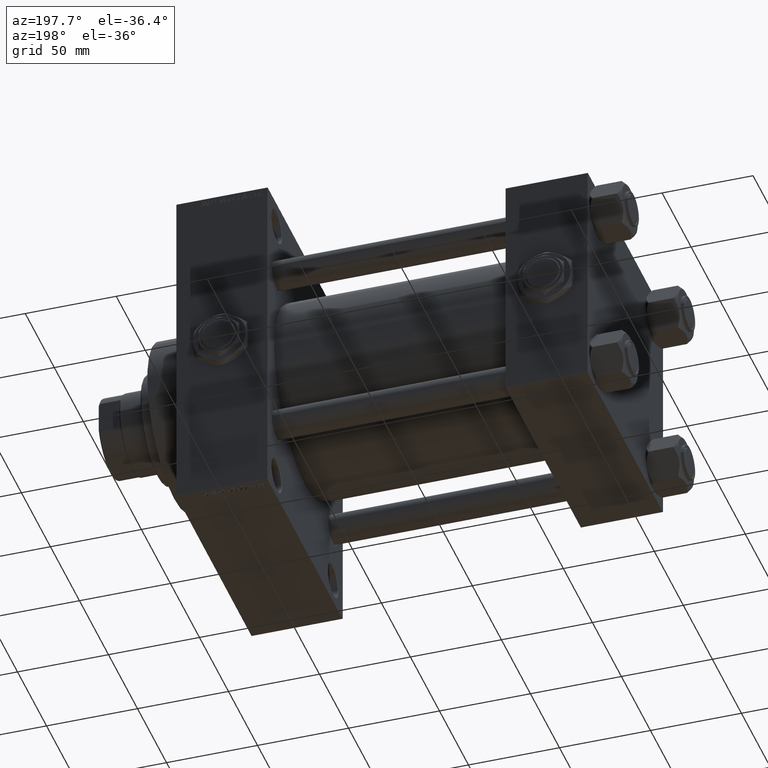
[diagram: clean part render]
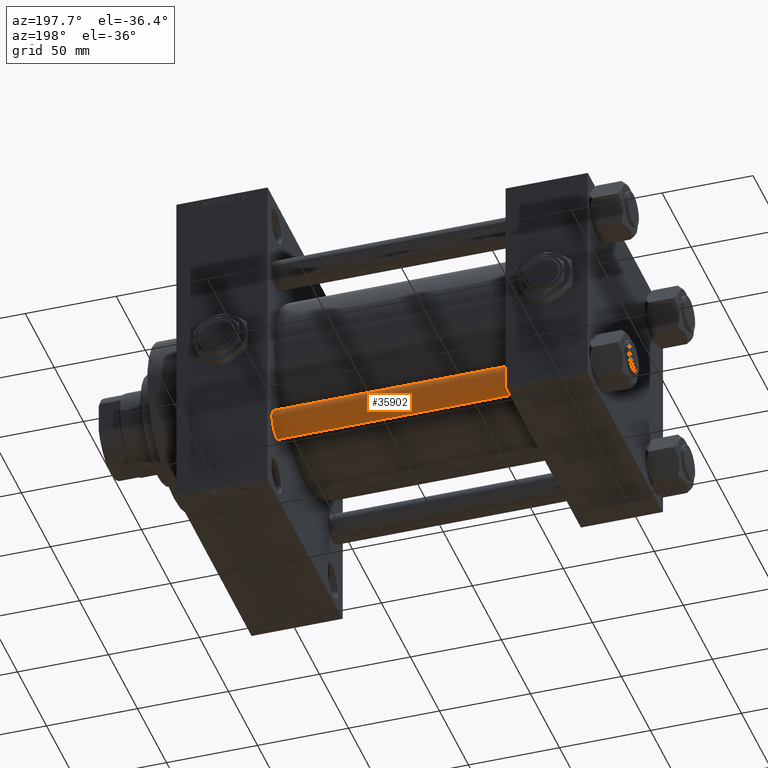
[diagram: same view with one face highlighted and labeled with its STEP entity id]
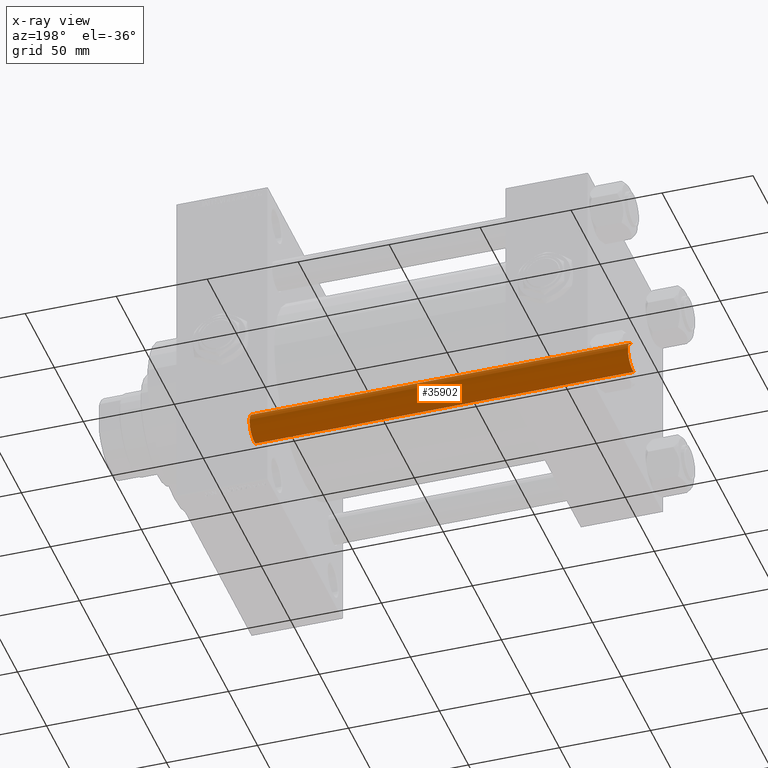
[diagram: x-ray of the same camera — body ghosted, the highlighted face saturated]
A machine part, auxiliary view. The second image highlights one B-rep face of the part: STEP entity #35902.
The next image is the same camera in x-ray: the body ghosted, the highlighted face saturated — about 0% of this face is hidden behind the body in this view.
In plain terms, the highlighted cylindrical surface (edge-blend (fillet) strip) has radius 8 mm, axis along (1, -0, 0).
Its self-contained STEP definition (entity closure, byte-faithful):
#741 = CARTESIAN_POINT ( 'NONE',  ( 0.000000000000000000, 0.000000000000000000, 209.0000000000000000 ) ) ;
#1508 = ORIENTED_EDGE ( 'NONE', *, *, #3264, .T. ) ;
#1842 = ORIENTED_EDGE ( 'NONE', *, *, #16798, .T. ) ;
#2264 = CIRCLE ( 'NONE', #20013, 8.000000000000000000 ) ;
#3264 = EDGE_CURVE ( 'NONE', #43394, #43210, #2264, .T. ) ;
#3636 = VECTOR ( 'NONE', #25861, 1000.000000000000000 ) ;
#3971 = CARTESIAN_POINT ( 'NONE',  ( -8.000000000000000000, 0.000000000000000000, 209.0000000000000000 ) ) ;
#4789 = DIRECTION ( 'NONE',  ( 0.000000000000000000, 0.000000000000000000, -1.000000000000000000 ) ) ;
#5029 = DIRECTION ( 'NONE',  ( -1.000000000000000000, 0.000000000000000000, 0.000000000000000000 ) ) ;
#5049 = VECTOR ( 'NONE', #38373, 1000.000000000000000 ) ;
#5125 = CARTESIAN_POINT ( 'NONE',  ( 8.000000000000000000, 9.797174393178825657E-16, 208.4999999999999716 ) ) ;
#5280 = DIRECTION ( 'NONE',  ( -0.000000000000000000, -0.000000000000000000, -1.000000000000000000 ) ) ;
#5327 = EDGE_LOOP ( 'NONE', ( #42704, #1842, #1508, #12394 ) ) ;
#10230 = EDGE_CURVE ( 'NONE', #40504, #43210, #49056, .T. ) ;
#12394 = ORIENTED_EDGE ( 'NONE', *, *, #10230, .F. ) ;
#14203 = LINE ( 'NONE', #14704, #3636 ) ;
#14704 = CARTESIAN_POINT ( 'NONE',  ( 8.000000000000000000, 9.797174393178825657E-16, 209.0000000000000000 ) ) ;
#16798 = EDGE_CURVE ( 'NONE', #49563, #43394, #14203, .T. ) ;
#20013 = AXIS2_PLACEMENT_3D ( 'NONE', #24536, #20479, #31894 ) ;
#20479 = DIRECTION ( 'NONE',  ( -0.000000000000000000, -0.000000000000000000, 1.000000000000000000 ) ) ;
#23286 = CARTESIAN_POINT ( 'NONE',  ( -8.000000000000000000, 0.000000000000000000, 0.5000000000000004441 ) ) ;
#24005 = CIRCLE ( 'NONE', #46594, 8.000000000000000000 ) ;
#24507 = CARTESIAN_POINT ( 'NONE',  ( 0.000000000000000000, 0.000000000000000000, 208.4999999999999716 ) ) ;
#24536 = CARTESIAN_POINT ( 'NONE',  ( 0.000000000000000000, 0.000000000000000000, 0.5000000000000004441 ) ) ;
#25861 = DIRECTION ( 'NONE',  ( -0.000000000000000000, -0.000000000000000000, -1.000000000000000000 ) ) ;
#31894 = DIRECTION ( 'NONE',  ( 1.000000000000000000, 0.000000000000000000, 0.000000000000000000 ) ) ;
#32123 = CYLINDRICAL_SURFACE ( 'NONE', #38983, 8.000000000000000000 ) ;
#34554 = CARTESIAN_POINT ( 'NONE',  ( -8.000000000000000000, 0.000000000000000000, 208.4999999999999716 ) ) ;
#35902 = ADVANCED_FACE ( 'NONE', ( #43463 ), #32123, .T. ) ;
#38373 = DIRECTION ( 'NONE',  ( -0.000000000000000000, -0.000000000000000000, -1.000000000000000000 ) ) ;
#38983 = AXIS2_PLACEMENT_3D ( 'NONE', #741, #5280, #5029 ) ;
#40504 = VERTEX_POINT ( 'NONE', #34554 ) ;
#42704 = ORIENTED_EDGE ( 'NONE', *, *, #46108, .T. ) ;
#43210 = VERTEX_POINT ( 'NONE', #23286 ) ;
#43394 = VERTEX_POINT ( 'NONE', #47013 ) ;
#43463 = FACE_OUTER_BOUND ( 'NONE', #5327, .T. ) ;
#46108 = EDGE_CURVE ( 'NONE', #40504, #49563, #24005, .T. ) ;
#46594 = AXIS2_PLACEMENT_3D ( 'NONE', #24507, #4789, #47002 ) ;
#47002 = DIRECTION ( 'NONE',  ( 1.000000000000000000, 0.000000000000000000, 0.000000000000000000 ) ) ;
#47013 = CARTESIAN_POINT ( 'NONE',  ( 8.000000000000000000, 9.797174393178825657E-16, 0.5000000000000004441 ) ) ;
#49056 = LINE ( 'NONE', #3971, #5049 ) ;
#49563 = VERTEX_POINT ( 'NONE', #5125 ) ;